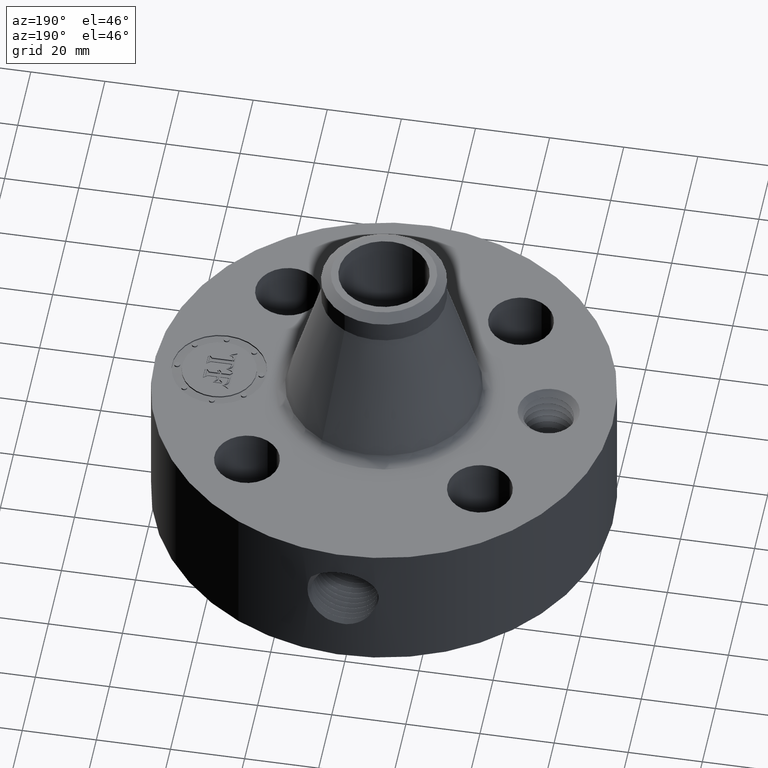
[diagram: clean part render]
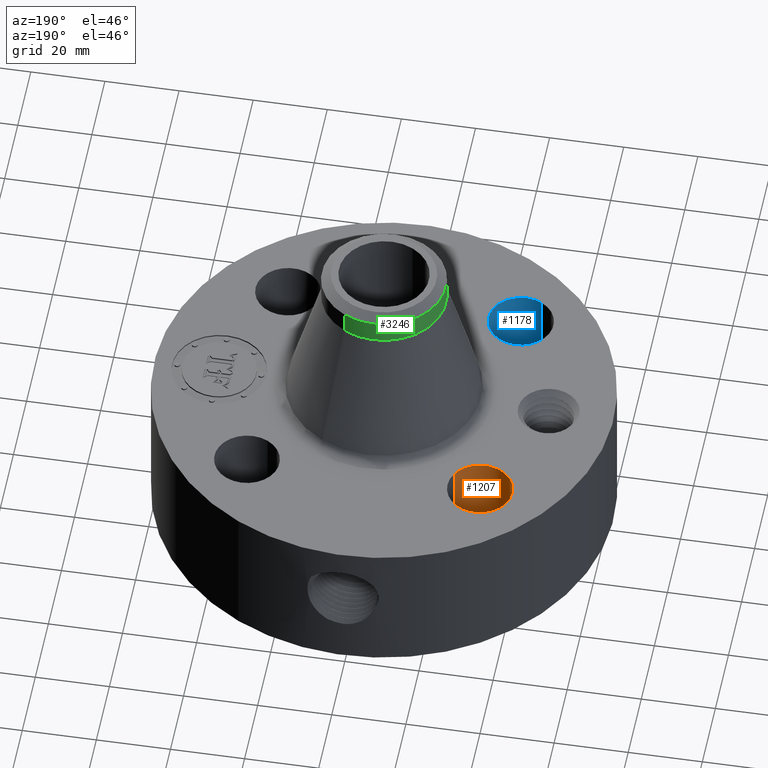
[diagram: same view with three faces highlighted in distinct colors, each labeled with its STEP entity id]
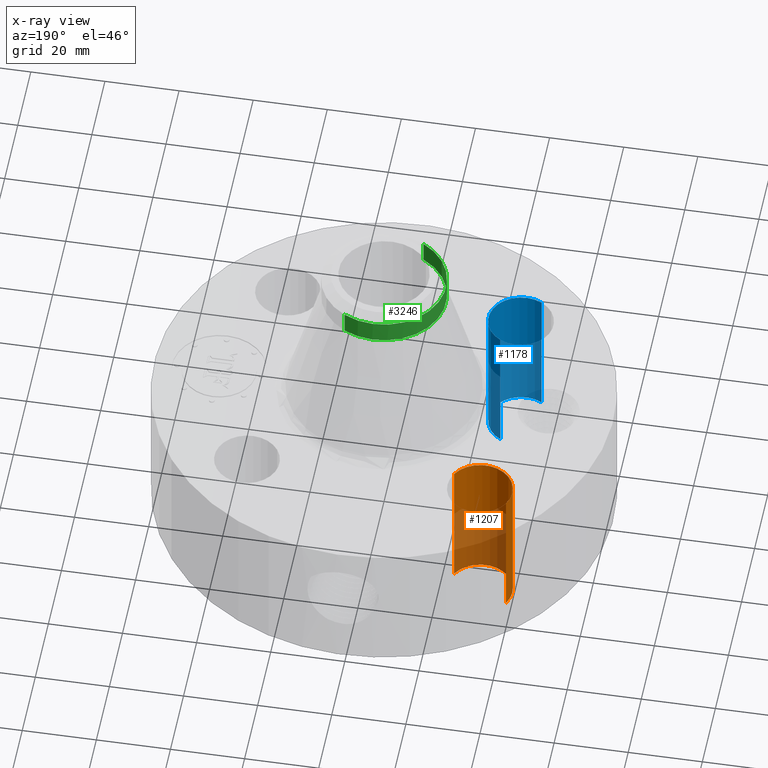
[diagram: x-ray of the same camera — body ghosted, the three highlighted faces saturated]
A machine part, auxiliary view with three faces highlighted in distinct colors.
The next image is the same camera in x-ray (body ghosted, the three faces saturated) — at least one of them is partly hidden behind the body in this view.
Their STEP definitions:

[orange] entity #1207 — the highlighted cylindrical surface (edge-blend (fillet) strip) has radius 8.763 mm, axis along (-0, 0, -1).
#281=AXIS2_PLACEMENT_3D('Circle Axis2P3D',#279,#280,$) ;
#538=AXIS2_PLACEMENT_3D('Circle Axis2P3D',#536,#537,$) ;
#1189=AXIS2_PLACEMENT_3D('Cylinder Axis2P3D',#1186,#1187,#1188) ;
#279=CARTESIAN_POINT('Axis2P3D Location',(-1.23743686708,1.23743686708,0.0600000000002)) ;
#283=CARTESIAN_POINT('Vertex',(-0.934670883228,1.07203505626,0.0600000000002)) ;
#285=CARTESIAN_POINT('Vertex',(-1.54020285093,1.4028386779,0.0600000000002)) ;
#531=CARTESIAN_POINT('Vertex',(-1.54020285093,1.4028386779,1.56000000001)) ;
#533=CARTESIAN_POINT('Vertex',(-0.934670883228,1.07203505626,1.56000000001)) ;
#536=CARTESIAN_POINT('Axis2P3D Location',(-1.23743686708,1.23743686708,1.56000000001)) ;
#1186=CARTESIAN_POINT('Axis2P3D Location',(-1.23743686708,1.23743686708,1.55606299213)) ;
#1191=CARTESIAN_POINT('Line Origine',(-0.934670883228,1.07203505626,0.810000000003)) ;
#1196=CARTESIAN_POINT('Line Origine',(-1.54020285093,1.4028386779,0.810000000003)) ;
#280=DIRECTION('Axis2P3D Direction',(0.,0.,-0.0393700787402)) ;
#537=DIRECTION('Axis2P3D Direction',(0.,0.,-0.0393700787402)) ;
#1187=DIRECTION('Axis2P3D Direction',(-0.,0.,-0.0393700787402)) ;
#1188=DIRECTION('Axis2P3D XDirection',(-0.0345504945626,0.0188750212049,0.)) ;
#1192=DIRECTION('Vector Direction',(0.,0.,-0.0393700787402)) ;
#1197=DIRECTION('Vector Direction',(0.,0.,-0.0393700787402)) ;
#1193=VECTOR('Line Direction',#1192,0.0393700787402) ;
#1198=VECTOR('Line Direction',#1197,0.0393700787402) ;
#1202=ORIENTED_EDGE('',*,*,#1195,.F.) ;
#1203=ORIENTED_EDGE('',*,*,#287,.T.) ;
#1204=ORIENTED_EDGE('',*,*,#1200,.T.) ;
#1205=ORIENTED_EDGE('',*,*,#540,.F.) ;
#1207=ADVANCED_FACE('PartBody',(#1206),#1190,.F.) ;
#282=CIRCLE('generated circle',#281,0.345000000001) ;
#539=CIRCLE('generated circle',#538,0.345000000001) ;
#1190=CYLINDRICAL_SURFACE('generated cylinder',#1189,0.345000000001) ;
#287=EDGE_CURVE('',#284,#286,#282,.T.) ;
#540=EDGE_CURVE('',#534,#532,#539,.T.) ;
#1195=EDGE_CURVE('',#284,#534,#1194,.F.) ;
#1200=EDGE_CURVE('',#286,#532,#1199,.F.) ;
#1201=EDGE_LOOP('',(#1202,#1203,#1204,#1205)) ;
#1206=FACE_OUTER_BOUND('',#1201,.T.) ;
#1194=LINE('Line',#1191,#1193) ;
#1199=LINE('Line',#1196,#1198) ;
#284=VERTEX_POINT('',#283) ;
#286=VERTEX_POINT('',#285) ;
#532=VERTEX_POINT('',#531) ;
#534=VERTEX_POINT('',#533) ;

[blue] entity #1178 — the highlighted cylindrical surface (edge-blend (fillet) strip) has radius 8.763 mm, axis along (0, -0, -1).
#263=AXIS2_PLACEMENT_3D('Circle Axis2P3D',#261,#262,$) ;
#520=AXIS2_PLACEMENT_3D('Circle Axis2P3D',#518,#519,$) ;
#1160=AXIS2_PLACEMENT_3D('Cylinder Axis2P3D',#1157,#1158,#1159) ;
#261=CARTESIAN_POINT('Axis2P3D Location',(-1.23743686708,-1.23743686708,0.0600000000002)) ;
#265=CARTESIAN_POINT('Vertex',(-1.07203505626,-0.934670883228,0.0600000000002)) ;
#267=CARTESIAN_POINT('Vertex',(-1.4028386779,-1.54020285093,0.0600000000002)) ;
#513=CARTESIAN_POINT('Vertex',(-1.4028386779,-1.54020285093,1.56000000001)) ;
#515=CARTESIAN_POINT('Vertex',(-1.07203505626,-0.934670883228,1.56000000001)) ;
#518=CARTESIAN_POINT('Axis2P3D Location',(-1.23743686708,-1.23743686708,1.56000000001)) ;
#1157=CARTESIAN_POINT('Axis2P3D Location',(-1.23743686708,-1.23743686708,1.55606299213)) ;
#1162=CARTESIAN_POINT('Line Origine',(-1.07203505626,-0.934670883228,0.810000000003)) ;
#1167=CARTESIAN_POINT('Line Origine',(-1.4028386779,-1.54020285093,0.810000000003)) ;
#262=DIRECTION('Axis2P3D Direction',(0.,0.,-0.0393700787402)) ;
#519=DIRECTION('Axis2P3D Direction',(0.,0.,-0.0393700787402)) ;
#1158=DIRECTION('Axis2P3D Direction',(0.,-0.,-0.0393700787402)) ;
#1159=DIRECTION('Axis2P3D XDirection',(-0.0188750212049,-0.0345504945626,0.)) ;
#1163=DIRECTION('Vector Direction',(0.,0.,-0.0393700787402)) ;
#1168=DIRECTION('Vector Direction',(0.,0.,-0.0393700787402)) ;
#1164=VECTOR('Line Direction',#1163,0.0393700787402) ;
#1169=VECTOR('Line Direction',#1168,0.0393700787402) ;
#1173=ORIENTED_EDGE('',*,*,#1166,.F.) ;
#1174=ORIENTED_EDGE('',*,*,#269,.T.) ;
#1175=ORIENTED_EDGE('',*,*,#1171,.T.) ;
#1176=ORIENTED_EDGE('',*,*,#522,.F.) ;
#1178=ADVANCED_FACE('PartBody',(#1177),#1161,.F.) ;
#264=CIRCLE('generated circle',#263,0.345000000001) ;
#521=CIRCLE('generated circle',#520,0.345000000001) ;
#1161=CYLINDRICAL_SURFACE('generated cylinder',#1160,0.345000000001) ;
#269=EDGE_CURVE('',#266,#268,#264,.T.) ;
#522=EDGE_CURVE('',#516,#514,#521,.T.) ;
#1166=EDGE_CURVE('',#266,#516,#1165,.F.) ;
#1171=EDGE_CURVE('',#268,#514,#1170,.F.) ;
#1172=EDGE_LOOP('',(#1173,#1174,#1175,#1176)) ;
#1177=FACE_OUTER_BOUND('',#1172,.T.) ;
#1165=LINE('Line',#1162,#1164) ;
#1170=LINE('Line',#1167,#1169) ;
#266=VERTEX_POINT('',#265) ;
#268=VERTEX_POINT('',#267) ;
#514=VERTEX_POINT('',#513) ;
#516=VERTEX_POINT('',#515) ;

[green] entity #3246 — the highlighted cylindrical surface (partial cylindrical patch) has radius 16.764 mm, axis along (0, 0, -1).
#2374=AXIS2_PLACEMENT_3D('Circle Axis2P3D',#2372,#2373,$) ;
#3191=AXIS2_PLACEMENT_3D('Cylinder Axis2P3D',#3188,#3189,#3190) ;
#3229=AXIS2_PLACEMENT_3D('Circle Axis2P3D',#3227,#3228,$) ;
#3236=AXIS2_PLACEMENT_3D('Circle Axis2P3D',#3234,#3235,$) ;
#2350=CARTESIAN_POINT('Vertex',(0.31642085548,0.57920449085,2.99492912713)) ;
#2357=CARTESIAN_POINT('Vertex',(-0.31642085548,-0.57920449085,2.99492912713)) ;
#2372=CARTESIAN_POINT('Axis2P3D Location',(0.,0.,2.99492912713)) ;
#3188=CARTESIAN_POINT('Axis2P3D Location',(0.,0.,1.65500000001)) ;
#3193=CARTESIAN_POINT('Line Origine',(-0.31642085548,-0.57920449085,3.11303936335)) ;
#3197=CARTESIAN_POINT('Vertex',(-0.31642085548,-0.57920449085,3.23114959957)) ;
#3200=CARTESIAN_POINT('Line Origine',(0.31642085548,0.57920449085,3.11303936335)) ;
#3204=CARTESIAN_POINT('Vertex',(0.31642085548,0.57920449085,3.23114959957)) ;
#3227=CARTESIAN_POINT('Axis2P3D Location',(0.,0.,3.23114959957)) ;
#3231=CARTESIAN_POINT('Vertex',(-0.31642085548,0.57920449085,3.23114959957)) ;
#3234=CARTESIAN_POINT('Axis2P3D Location',(0.,0.,3.23114959957)) ;
#2373=DIRECTION('Axis2P3D Direction',(0.,0.,-0.0393700787402)) ;
#3189=DIRECTION('Axis2P3D Direction',(0.,0.,-0.0393700787402)) ;
#3190=DIRECTION('Axis2P3D XDirection',(-0.0188750212049,-0.0345504945626,0.)) ;
#3194=DIRECTION('Vector Direction',(0.,0.,-0.0393700787402)) ;
#3201=DIRECTION('Vector Direction',(0.,0.,-0.0393700787402)) ;
#3228=DIRECTION('Axis2P3D Direction',(0.,0.,-0.0393700787402)) ;
#3235=DIRECTION('Axis2P3D Direction',(0.,0.,-0.0393700787402)) ;
#3195=VECTOR('Line Direction',#3194,0.0393700787402) ;
#3202=VECTOR('Line Direction',#3201,0.0393700787402) ;
#3240=ORIENTED_EDGE('',*,*,#3206,.F.) ;
#3241=ORIENTED_EDGE('',*,*,#2376,.F.) ;
#3242=ORIENTED_EDGE('',*,*,#3199,.T.) ;
#3243=ORIENTED_EDGE('',*,*,#3233,.F.) ;
#3244=ORIENTED_EDGE('',*,*,#3238,.T.) ;
#3246=ADVANCED_FACE('PartBody',(#3245),#3192,.T.) ;
#2375=CIRCLE('generated circle',#2374,0.660000000003) ;
#3230=CIRCLE('generated circle',#3229,0.660000000003) ;
#3237=CIRCLE('generated circle',#3236,0.660000000003) ;
#3192=CYLINDRICAL_SURFACE('generated cylinder',#3191,0.660000000003) ;
#2376=EDGE_CURVE('',#2358,#2351,#2375,.T.) ;
#3199=EDGE_CURVE('',#2358,#3198,#3196,.F.) ;
#3206=EDGE_CURVE('',#2351,#3205,#3203,.F.) ;
#3233=EDGE_CURVE('',#3232,#3198,#3230,.F.) ;
#3238=EDGE_CURVE('',#3232,#3205,#3237,.T.) ;
#3239=EDGE_LOOP('',(#3240,#3241,#3242,#3243,#3244)) ;
#3245=FACE_OUTER_BOUND('',#3239,.T.) ;
#3196=LINE('Line',#3193,#3195) ;
#3203=LINE('Line',#3200,#3202) ;
#2351=VERTEX_POINT('',#2350) ;
#2358=VERTEX_POINT('',#2357) ;
#3198=VERTEX_POINT('',#3197) ;
#3205=VERTEX_POINT('',#3204) ;
#3232=VERTEX_POINT('',#3231) ;